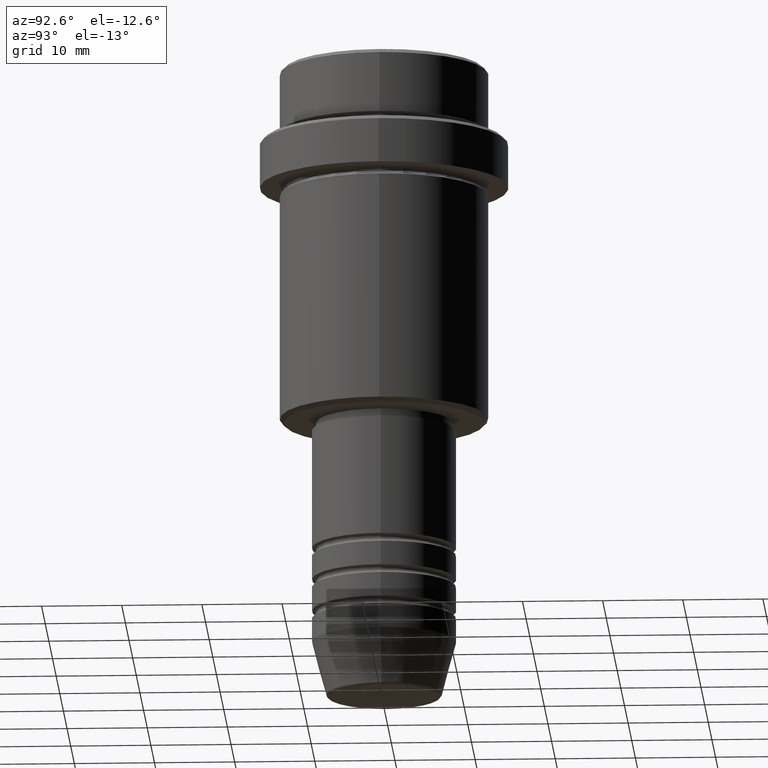
[diagram: clean part render]
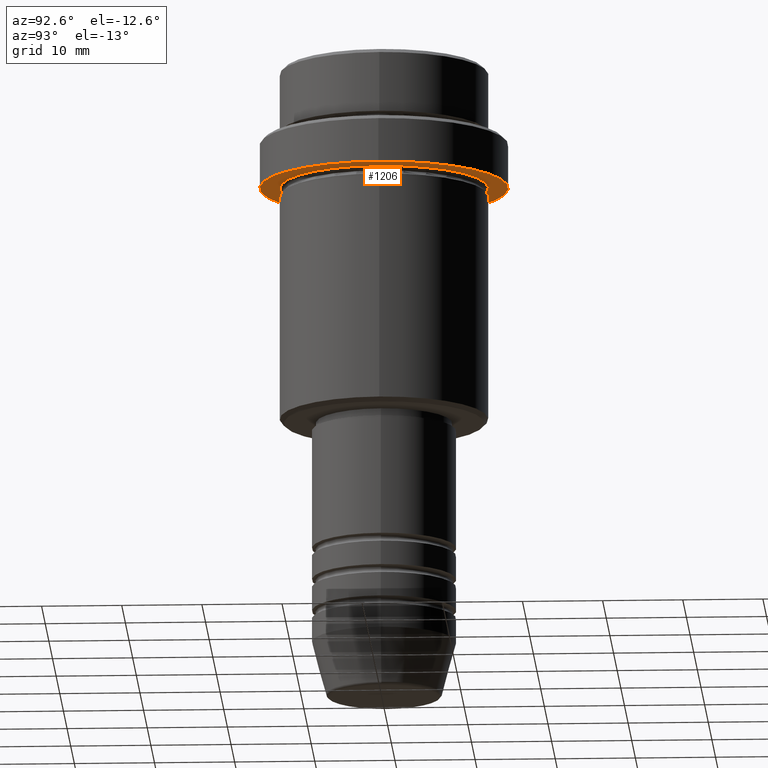
[diagram: same view with one face highlighted and labeled with its STEP entity id]
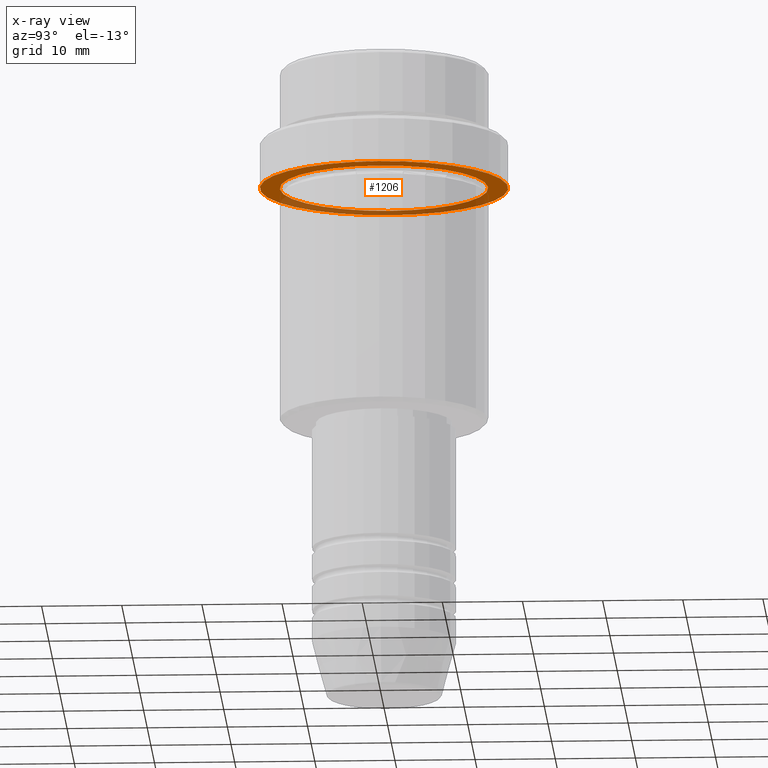
[diagram: x-ray of the same camera — body ghosted, the highlighted face saturated]
A machine part, auxiliary view. The second image highlights one B-rep face of the part: STEP entity #1206.
The next image is the same camera in x-ray: the body ghosted, the highlighted face saturated — about 35% of this face is hidden behind the body in this view.
In plain terms, the highlighted planar face has unit normal (0, 0, -1).
Its self-contained STEP definition (entity closure, byte-faithful):
#15 = CARTESIAN_POINT ( 'NONE',  ( 0.000000000000000000, 0.000000000000000000, -15.00000000000000000 ) ) ;
#18 = EDGE_CURVE ( 'NONE', #1056, #1285, #599, .T. ) ;
#91 = VERTEX_POINT ( 'NONE', #505 ) ;
#122 = DIRECTION ( 'NONE',  ( -1.000000000000000000, 0.000000000000000000, 0.000000000000000000 ) ) ;
#134 = EDGE_LOOP ( 'NONE', ( #1231, #1004 ) ) ;
#154 = DIRECTION ( 'NONE',  ( 1.000000000000000000, 0.000000000000000000, 0.000000000000000000 ) ) ;
#199 = CIRCLE ( 'NONE', #1016, 12.99999999999999645 ) ;
#205 = VERTEX_POINT ( 'NONE', #562 ) ;
#302 = FACE_BOUND ( 'NONE', #680, .T. ) ;
#327 = DIRECTION ( 'NONE',  ( 1.000000000000000000, 0.000000000000000000, 0.000000000000000000 ) ) ;
#354 = AXIS2_PLACEMENT_3D ( 'NONE', #370, #1136, #154 ) ;
#367 = AXIS2_PLACEMENT_3D ( 'NONE', #980, #1075, #850 ) ;
#370 = CARTESIAN_POINT ( 'NONE',  ( 0.000000000000000000, 0.000000000000000000, -15.00000000000000000 ) ) ;
#391 = DIRECTION ( 'NONE',  ( -1.000000000000000000, 0.000000000000000000, 0.000000000000000000 ) ) ;
#411 = PLANE ( 'NONE',  #367 ) ;
#431 = AXIS2_PLACEMENT_3D ( 'NONE', #770, #898, #327 ) ;
#505 = CARTESIAN_POINT ( 'NONE',  ( 12.99999999999999645, 1.592040838891558701E-15, -15.00000000000000000 ) ) ;
#562 = CARTESIAN_POINT ( 'NONE',  ( -12.99999999999999645, 0.000000000000000000, -15.00000000000000000 ) ) ;
#599 = CIRCLE ( 'NONE', #354, 15.50000000000000000 ) ;
#666 = AXIS2_PLACEMENT_3D ( 'NONE', #1181, #1381, #391 ) ;
#680 = EDGE_LOOP ( 'NONE', ( #877, #1404 ) ) ;
#728 = EDGE_CURVE ( 'NONE', #205, #91, #199, .T. ) ;
#759 = EDGE_CURVE ( 'NONE', #1285, #1056, #1017, .T. ) ;
#770 = CARTESIAN_POINT ( 'NONE',  ( 0.000000000000000000, 0.000000000000000000, -15.00000000000000000 ) ) ;
#844 = FACE_OUTER_BOUND ( 'NONE', #134, .T. ) ;
#850 = DIRECTION ( 'NONE',  ( -1.000000000000000000, 0.000000000000000000, -0.000000000000000000 ) ) ;
#877 = ORIENTED_EDGE ( 'NONE', *, *, #728, .T. ) ;
#898 = DIRECTION ( 'NONE',  ( -0.000000000000000000, -0.000000000000000000, 1.000000000000000000 ) ) ;
#952 = CARTESIAN_POINT ( 'NONE',  ( 15.50000000000000000, 0.000000000000000000, -15.00000000000000000 ) ) ;
#980 = CARTESIAN_POINT ( 'NONE',  ( 0.000000000000000000, 15.50000000000000000, -15.00000000000000000 ) ) ;
#1004 = ORIENTED_EDGE ( 'NONE', *, *, #759, .F. ) ;
#1007 = DIRECTION ( 'NONE',  ( -0.000000000000000000, -0.000000000000000000, 1.000000000000000000 ) ) ;
#1016 = AXIS2_PLACEMENT_3D ( 'NONE', #15, #1007, #122 ) ;
#1017 = CIRCLE ( 'NONE', #431, 15.50000000000000000 ) ;
#1039 = EDGE_CURVE ( 'NONE', #91, #205, #1101, .T. ) ;
#1056 = VERTEX_POINT ( 'NONE', #952 ) ;
#1075 = DIRECTION ( 'NONE',  ( 0.000000000000000000, 0.000000000000000000, -1.000000000000000000 ) ) ;
#1101 = CIRCLE ( 'NONE', #666, 12.99999999999999645 ) ;
#1136 = DIRECTION ( 'NONE',  ( -0.000000000000000000, -0.000000000000000000, 1.000000000000000000 ) ) ;
#1181 = CARTESIAN_POINT ( 'NONE',  ( 0.000000000000000000, 0.000000000000000000, -15.00000000000000000 ) ) ;
#1206 = ADVANCED_FACE ( 'NONE', ( #302, #844 ), #411, .T. ) ;
#1231 = ORIENTED_EDGE ( 'NONE', *, *, #18, .F. ) ;
#1285 = VERTEX_POINT ( 'NONE', #1336 ) ;
#1336 = CARTESIAN_POINT ( 'NONE',  ( -15.50000000000000000, 1.898202538678397557E-15, -15.00000000000000000 ) ) ;
#1381 = DIRECTION ( 'NONE',  ( -0.000000000000000000, -0.000000000000000000, 1.000000000000000000 ) ) ;
#1404 = ORIENTED_EDGE ( 'NONE', *, *, #1039, .T. ) ;